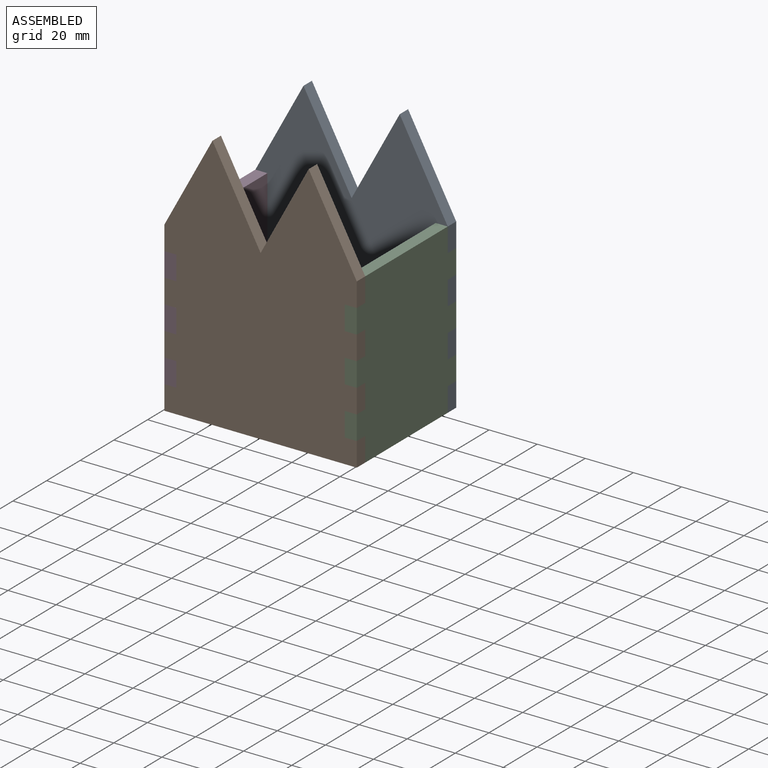
[diagram: assembled view]
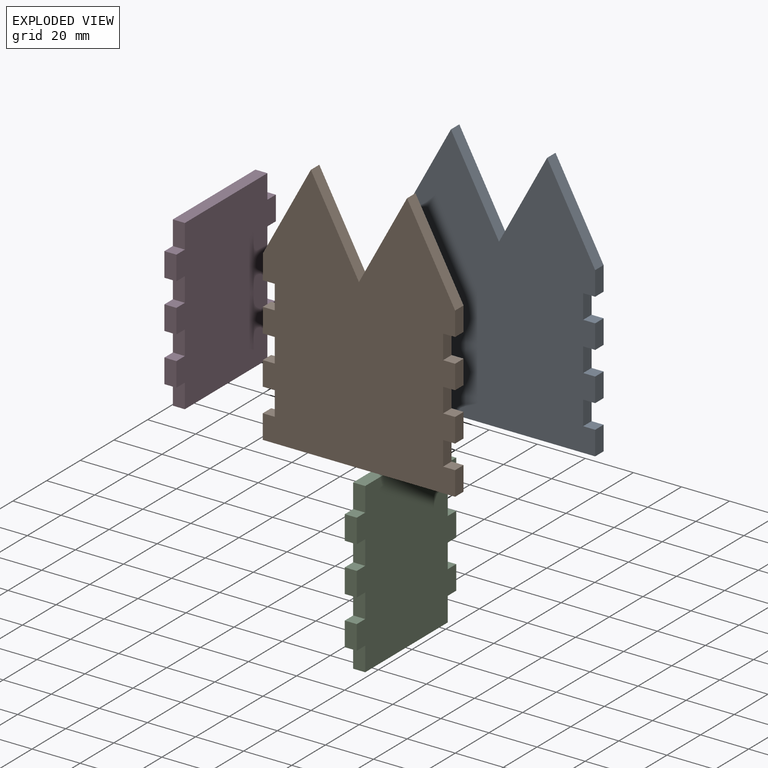
[diagram: exploded view]
GUIDED TOUR — MATED ASSEMBLY (Onshape document 05a98cf973ef19cc7b32fe3d, AutoMate assembly 05a98cf973ef19cc7b32fe3d_c6d968581043684dbeae923d_19a64985cd0939f87ec91731_default)

This assembly has 4 components, labeled P0..P3 below (a component is one placed occurrence of a part; the same part can appear more than once), held together by 3 mates. A mate is a constraint between two components; its type names the relative motion it leaves free:
  PLANAR — leaves sliding in the plane through the listed point (normal = the listed direction) and rotation about that normal free.
Axis/direction vectors are unit vectors and 'through' points are millimeter coordinates, both in the assembly's world frame.

MATES
  1. PLANAR "Planar 2": P0 <-> P2, direction (0.000, 0.000, 1.000) through (0.19, 60.96, 40.18) mm
  2. PLANAR "Planar 3": P3 <-> P0, direction (0.000, 0.000, -1.000) through (-74.81, 65.96, 50.18) mm
  3. PLANAR "Planar 1": P2 <-> P1, direction (0.000, 0.000, -1.000) through (-4.81, 6.92, 50.18) mm

ASSEMBLY ORDER
  1. P3 — the base component [order verified]
  2. P0 [order verified]
  3. P1 [order verified]
  4. P2 [order verified]
Order-tag legend:
  [order verified] — this step's position reverses a verified removal order: the component was checked to insert without passing through the ones already placed.

Of the 4 components, 2 carry the full construction recipe — the FeatureScript program that regenerates the part's solid from scratch; the rest are supplied as boundary geometry only.
Each toured component is shown spotlighted twice — in the assembled view, then in the exploded view, where a leader line traces a displaced component back to its assembled socket (saturated green if recipe-attached, orange if geometry-only; every other component desaturated gray) — followed by its recipe or geometry summary and the mates that hold it.
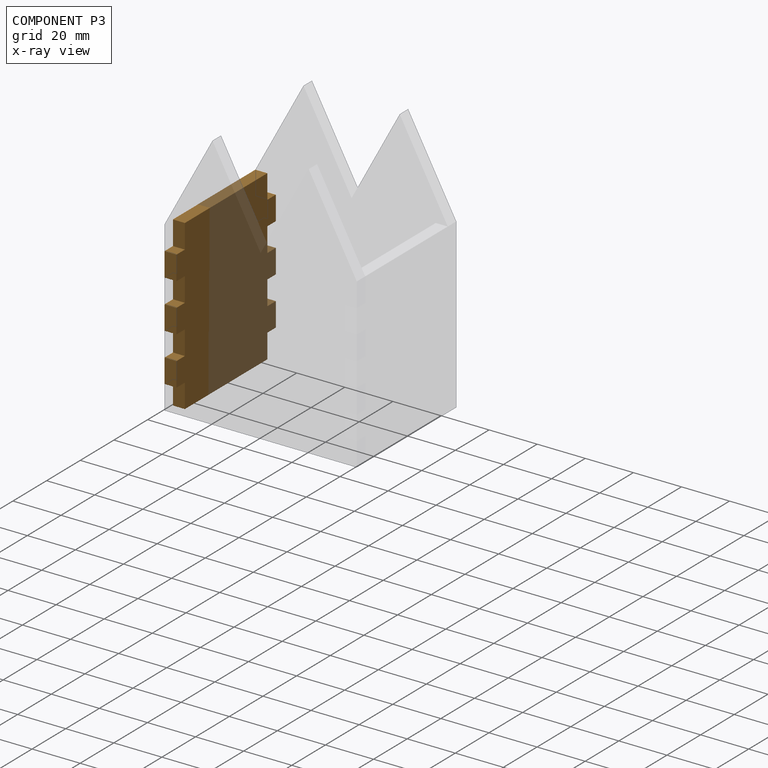
[diagram: component P3 — x-ray view]
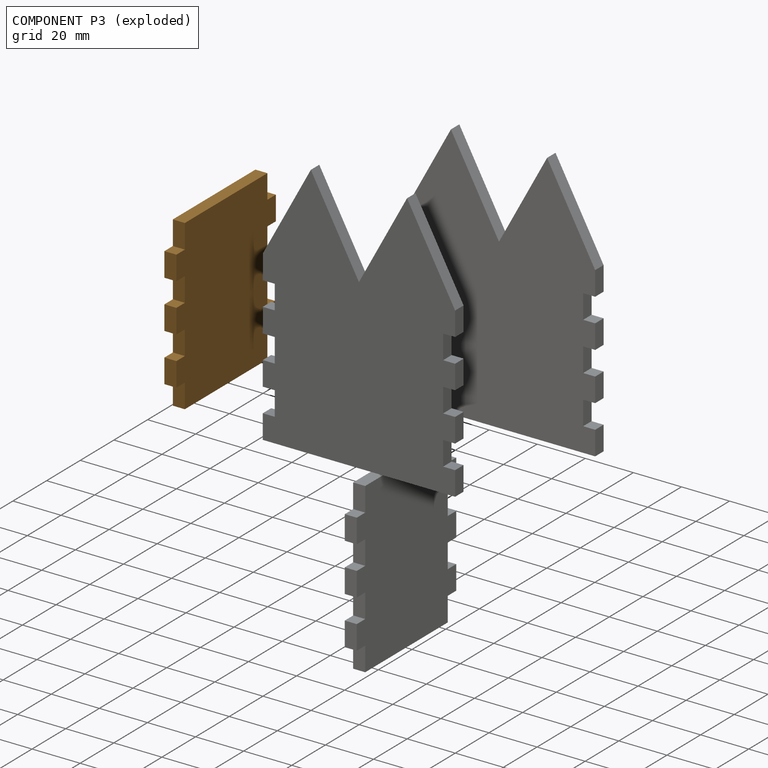
[diagram: component P3 — exploded]
COMPONENT P3 — geometry summary (no construction recipe available for this part):
  bounding box: 70.0 x 59.0 x 5.0 mm
  B-rep topology: 1 solid, 30 faces, 168 edges
  volume: 18665 mm^3 (90% of its bounding box)
  symmetry: 2-fold rotationally symmetric about the x axis; 2-fold rotationally symmetric about the y axis; 2-fold rotationally symmetric about the z axis; mirror-symmetric across its x mid-plane, y mid-plane, z mid-plane
Held by: PLANAR mate "Planar 3" to P0.
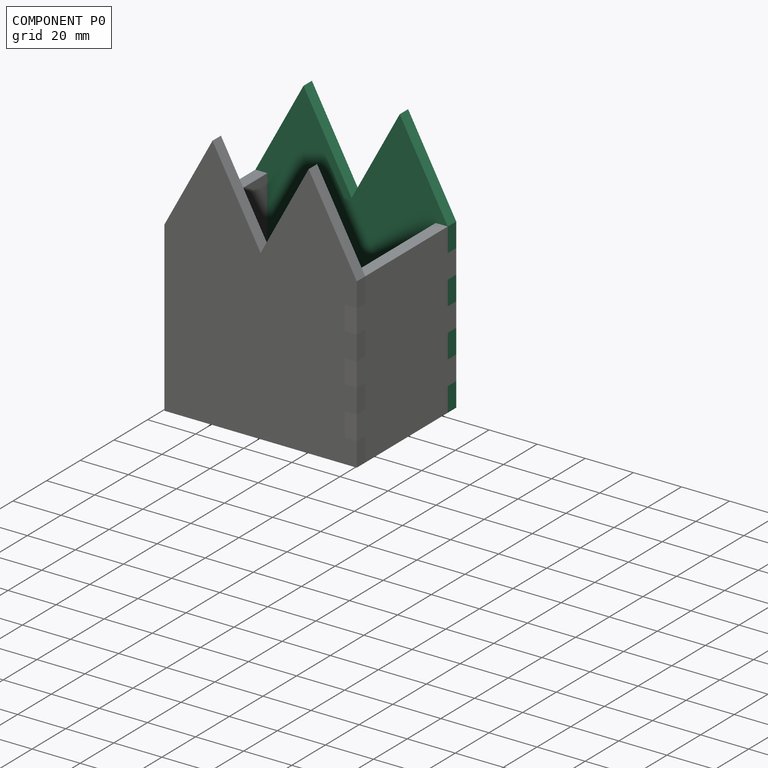
[diagram: component P0 — assembled]
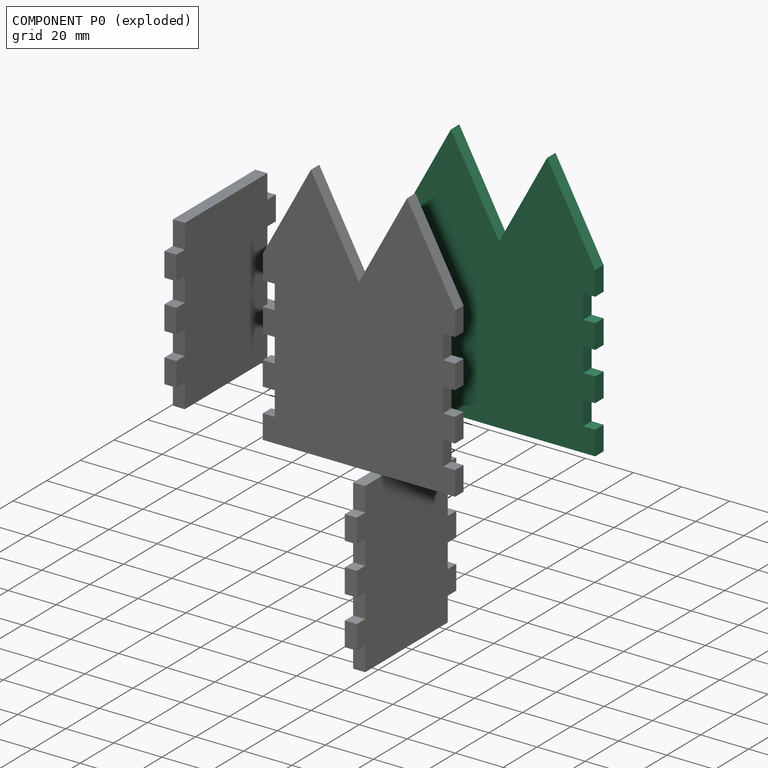
[diagram: component P0 — exploded]
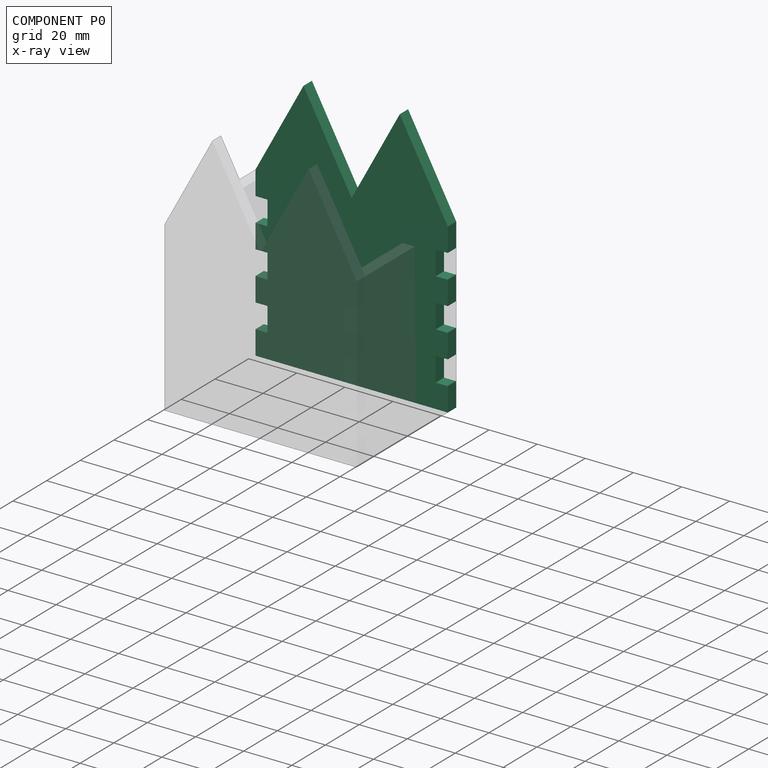
[diagram: component P0 — x-ray view]
COMPONENT P0 — recipe-attached (CADFS 00687756, mesh-verified: the recipe's output STEP matches this component's geometry to below the mesh-comparison resolution (tessellation chordal tolerance ~0.2 mm)).
Held by: PLANAR mate "Planar 2" to P2; PLANAR mate "Planar 3" to P3.
Construction recipe (FeatureScript — the CAD program that rebuilds this solid; sketch coordinates are in the units given by the * unit suffixes, e.g. mm):

FeatureScript 1511;
import(path : "onshape/std/geometry.fs", version : "1511.0");
import(path : "onshape/std/common.fs", version : "1511.0");
const mm = millimeter;
const VERTEX = EntityType.VERTEX;
const EDGE = EntityType.EDGE;
const FACE = EntityType.FACE;
const BODY = EntityType.BODY;
function v(x, y){return vector(x, y);}
function OD(order){return orderDisambiguation(order);}
function OSD(set){return originalSetDisambiguation(set);}
function TD(topology){return topologyDisambiguation(topology);}
function TDD(query){return trueDependencyDisambiguation(query);}
function sQuery(a, b, c) {return sketchEntityQuery(a, b, c);}

annotation { "Feature Type Name" : "Feature", "Feature Type Description" : "" }
export const myFeature = defineFeature(function(context is Context, id is Id, definition is map)
    precondition{}
    {
        {
            var Q0;
            Q0=qCreatedBy(makeId("Front.planeOp"),FACE);
            var sketch = newSketch(context, id + "F0", { "sketchPlane" : qUnion([Q0])});
            skLineSegment(sketch, "E0.bottom", {"start": v(-40, 0) * mm, "end": v(0, 0) * mm});
            skLineSegment(sketch, "E0.top", {"start": v(-40, 70) * mm, "end": v(0, 70) * mm});
            skLineSegment(sketch, "E0.left", {"start": v(-40, 0) * mm, "end": v(-40, 10) * mm});
            skLineSegment(sketch, "E0.right", {"start": v(0, 0) * mm, "end": v(0, 70) * mm});
            skLineSegment(sketch, "E1", {"start": v(-20, 106.85) * mm, "end": v(-40, 70) * mm});
            skLineSegment(sketch, "E2", {"start": v(-20, 106.85) * mm, "end": v(0, 70) * mm});
            skPoint(sketch, "E3.start.orphan", {"position": v(-20, 70) * mm});
            skLineSegment(sketch, "E4.bottom", {"start": v(-40, 60) * mm, "end": v(-35, 60) * mm});
            skLineSegment(sketch, "E4.top", {"start": v(-40, 50) * mm, "end": v(-35, 50) * mm});
            skLineSegment(sketch, "E4.right", {"start": v(-35, 60) * mm, "end": v(-35, 50) * mm});
            skLineSegment(sketch, "E5.bottom", {"start": v(-40, 20) * mm, "end": v(-35, 20) * mm});
            skLineSegment(sketch, "E5.top", {"start": v(-40, 10) * mm, "end": v(-35, 10) * mm});
            skLineSegment(sketch, "E5.right", {"start": v(-35, 20) * mm, "end": v(-35, 10) * mm});
            skLineSegment(sketch, "E6.bottom", {"start": v(-35, 40) * mm, "end": v(-40, 40) * mm});
            skLineSegment(sketch, "E6.top", {"start": v(-35, 30) * mm, "end": v(-40, 30) * mm});
            skLineSegment(sketch, "E6.left", {"start": v(-35, 40) * mm, "end": v(-35, 30) * mm});
            skLineSegment(sketch, "E7.trimOffspring", {"start": v(-40, 60) * mm, "end": v(-40, 70) * mm});
            skLineSegment(sketch, "E8.trimOffspring", {"start": v(-40, 40) * mm, "end": v(-40, 50) * mm});
            skLineSegment(sketch, "E9.trimOffspring", {"start": v(-40, 20) * mm, "end": v(-40, 30) * mm});
            skLineSegment(sketch, "E10.MirrorCS", {"start": v(40, 10) * mm, "end": v(35, 10) * mm});
            skLineSegment(sketch, "E11.MirrorCS", {"start": v(35, 30) * mm, "end": v(40, 30) * mm});
            skLineSegment(sketch, "E12.MirrorCS", {"start": v(35, 60) * mm, "end": v(35, 50) * mm});
            skLineSegment(sketch, "E13.MirrorCS", {"start": v(40, 60) * mm, "end": v(40, 70) * mm});
            skLineSegment(sketch, "E14.MirrorCS", {"start": v(40, 50) * mm, "end": v(35, 50) * mm});
            skLineSegment(sketch, "E15.MirrorCS", {"start": v(40, 60) * mm, "end": v(35, 60) * mm});
            skLineSegment(sketch, "E16.MirrorCS", {"start": v(40, 0) * mm, "end": v(40, 10) * mm});
            skLineSegment(sketch, "E17.MirrorCS", {"start": v(40, 40) * mm, "end": v(40, 50) * mm});
            skLineSegment(sketch, "E18.MirrorCS", {"start": v(40, 20) * mm, "end": v(35, 20) * mm});
            skLineSegment(sketch, "E19.MirrorCS", {"start": v(35, 20) * mm, "end": v(35, 10) * mm});
            skLineSegment(sketch, "E20.MirrorCS", {"start": v(40, 20) * mm, "end": v(40, 30) * mm});
            skLineSegment(sketch, "E21.MirrorCS", {"start": v(35, 40) * mm, "end": v(40, 40) * mm});
            skLineSegment(sketch, "E22.MirrorCS", {"start": v(35, 40) * mm, "end": v(35, 30) * mm});
            skLineSegment(sketch, "E23.MirrorCS", {"start": v(40, 70) * mm, "end": v(0, 70) * mm});
            skLineSegment(sketch, "E24.MirrorCS", {"start": v(20, 106.85) * mm, "end": v(40, 70) * mm});
            skPoint(sketch, "E25.MirrorP", {"position": v(20, 70) * mm});
            skLineSegment(sketch, "E26.MirrorCS", {"start": v(40, 0) * mm, "end": v(0, 0) * mm});
            skLineSegment(sketch, "E27.MirrorCS", {"start": v(20, 106.85) * mm, "end": v(0, 70) * mm});
            skSolve(sketch);
        }
        {
            var Q0;
            Q0 = qSketchRegion(id + "F0", true);
            extrude(context, id + "F1", {"entities" : qUnion([Q0]), "depth" : 5 * mm, "offsetDistance" : 25 * mm});
        }
    });
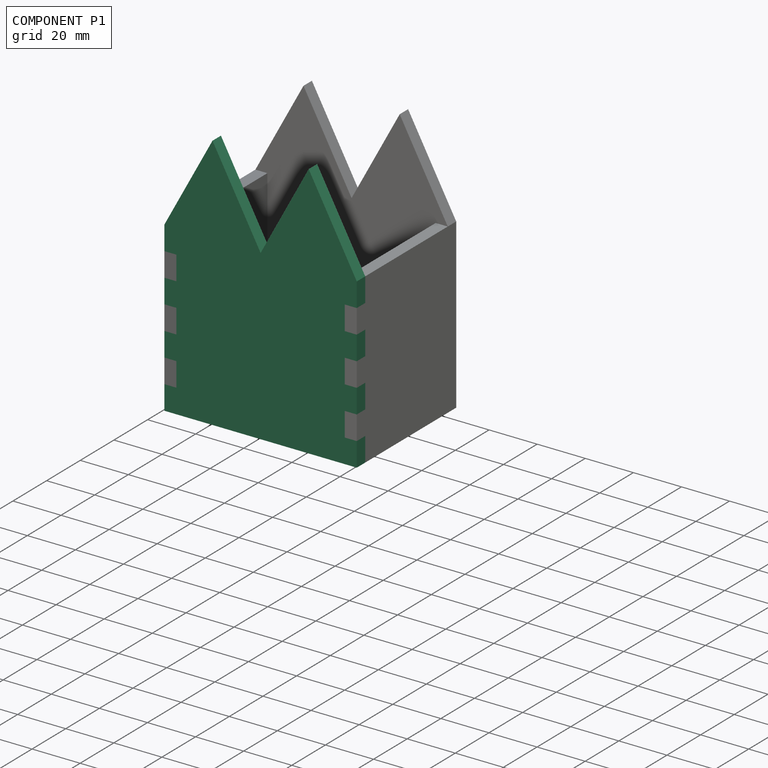
[diagram: component P1 — assembled]
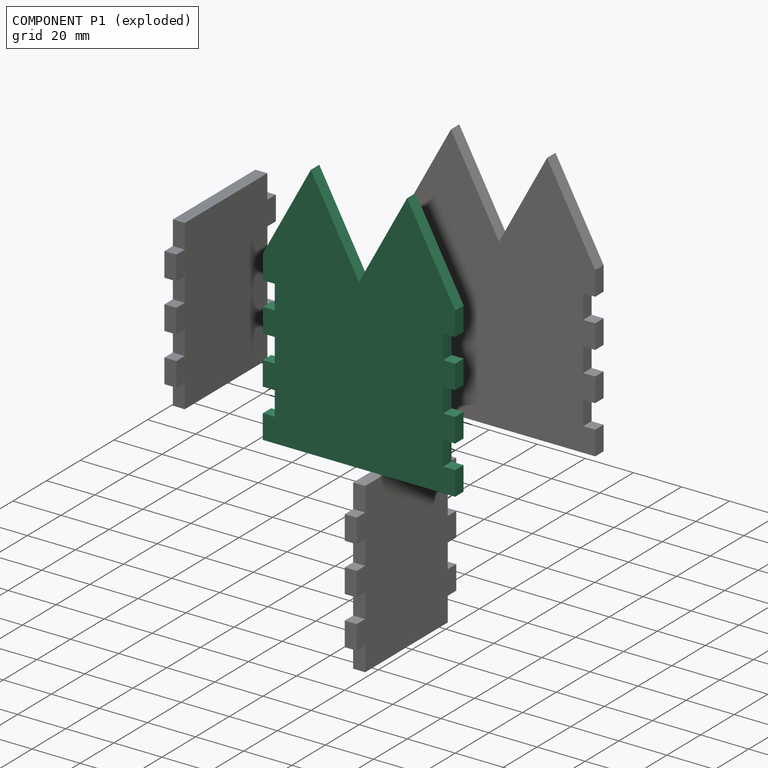
[diagram: component P1 — exploded]
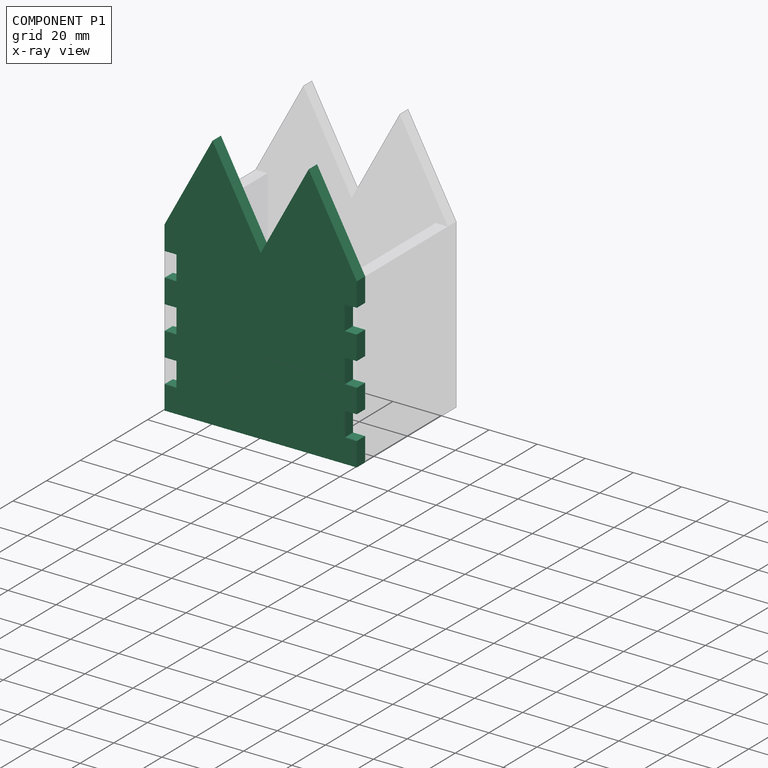
[diagram: component P1 — x-ray view]
COMPONENT P1 — same part as P0 (CADFS 00687756); its construction recipe is shown at P0.
Held by: PLANAR mate "Planar 1" to P2.
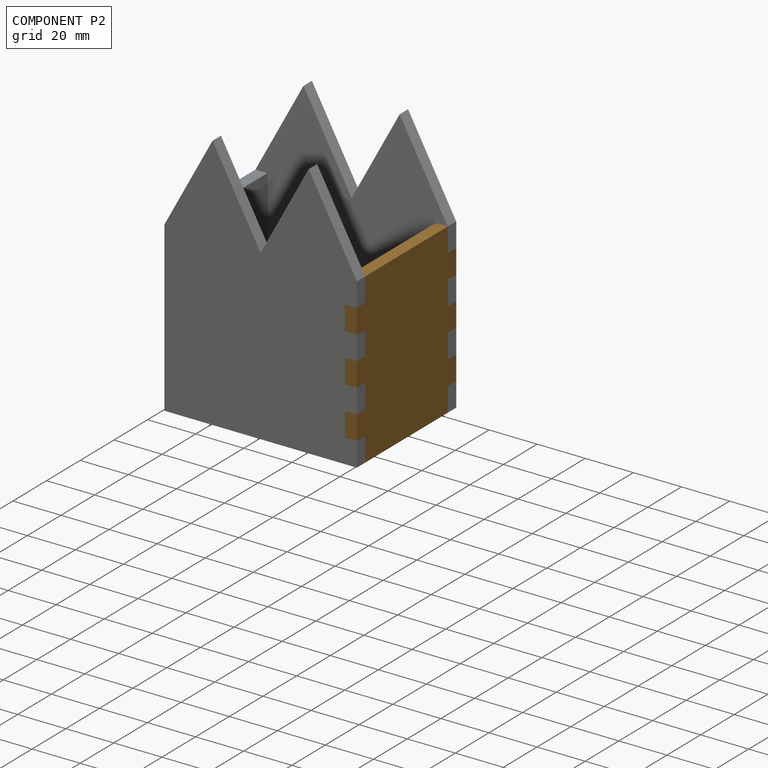
[diagram: component P2 — assembled]
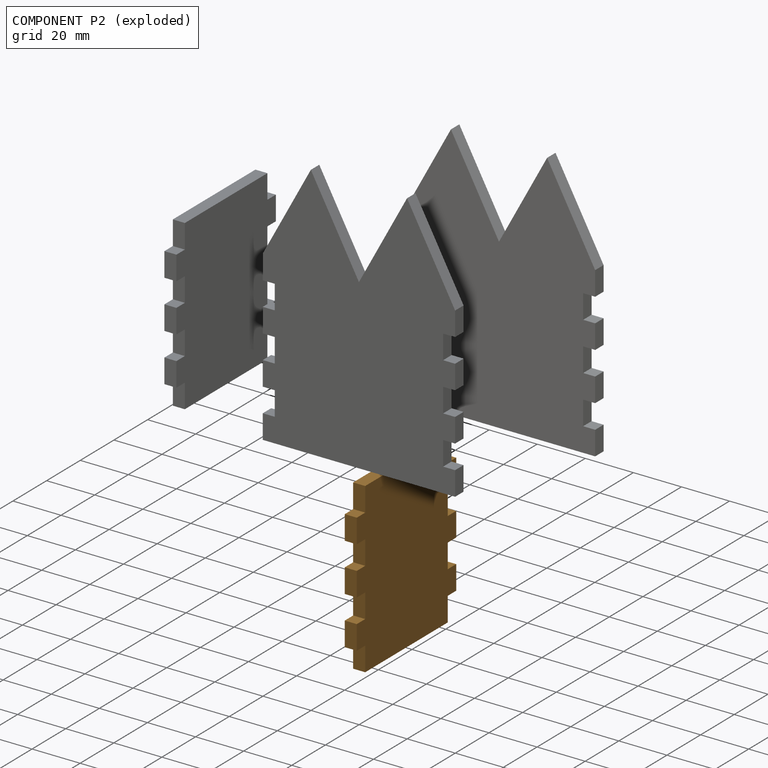
[diagram: component P2 — exploded]
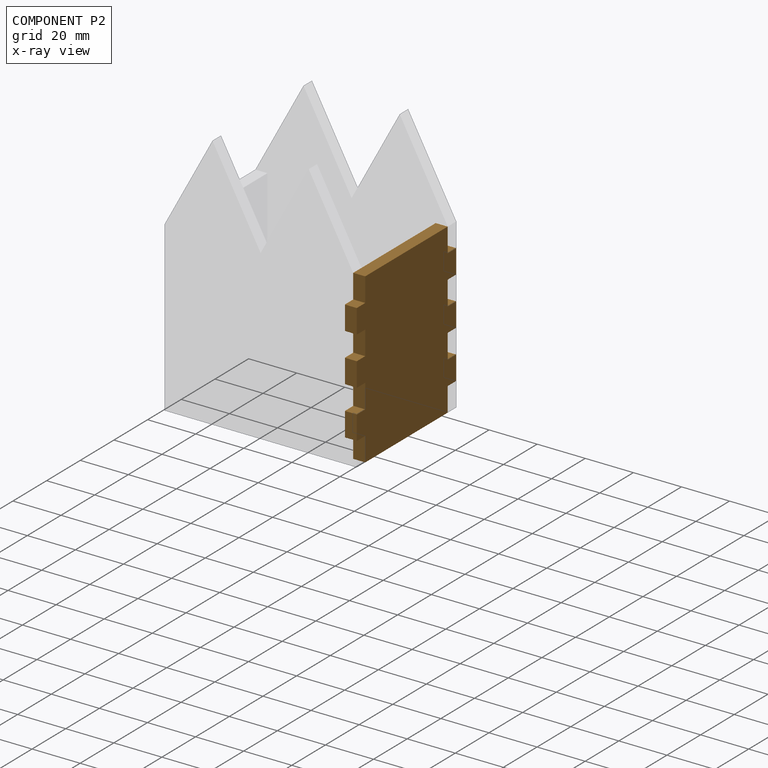
[diagram: component P2 — x-ray view]
COMPONENT P2 — geometry summary (no construction recipe available for this part):
  bounding box: 70.0 x 59.0 x 5.0 mm
  B-rep topology: 1 solid, 30 faces, 168 edges
  volume: 18665 mm^3 (90% of its bounding box)
  symmetry: 2-fold rotationally symmetric about the x axis; 2-fold rotationally symmetric about the y axis; 2-fold rotationally symmetric about the z axis; mirror-symmetric across its x mid-plane, y mid-plane, z mid-plane
Held by: PLANAR mate "Planar 2" to P0; PLANAR mate "Planar 1" to P1.
PROVENANCE & LICENSES
Assembly (occurrences, transforms, mates, per-part STEP geometry): AutoMate dataset, Zenodo record 7776208, CC0.
Construction recipes: CADFS (HuggingFace VladPyatov/CADFS, CC-BY-4.0, layered over the ABC dataset), FeatureScript reconstruction programs keyed by ABC model id.
Join: ABC meta listings map ABC model id -> Onshape documentId; within a shared document, parts are matched by geometric signature (bounding-box dims + volume at 0.1% relative tolerance, exact B-rep face/solid counts).
Verification: 2 of this assembly's 4 components carry a recipe attachment, and every attachment is mesh-verified: the CADFS STEP and the AutoMate member STEP were compared as meshes in their shared local frame (symmetric sampled-point-to-mesh distance); worst across the 2 attachments: below the mesh-comparison resolution (tessellation chordal tolerance ~0.2 mm) on a 134 mm part.
Renders: orthographic iso camera (az 35 / el 25); the floor grid conveys scale (grid pitch printed in each image; no ruler). In the exploded view each component is displaced by its stored offset vector: the offsets alone carry the explosion direction (mate normal/axis signs are not orientation cues and do not encode it), and separation distances are assigned per mate-chain, not proportionally to assembly-order depth.
